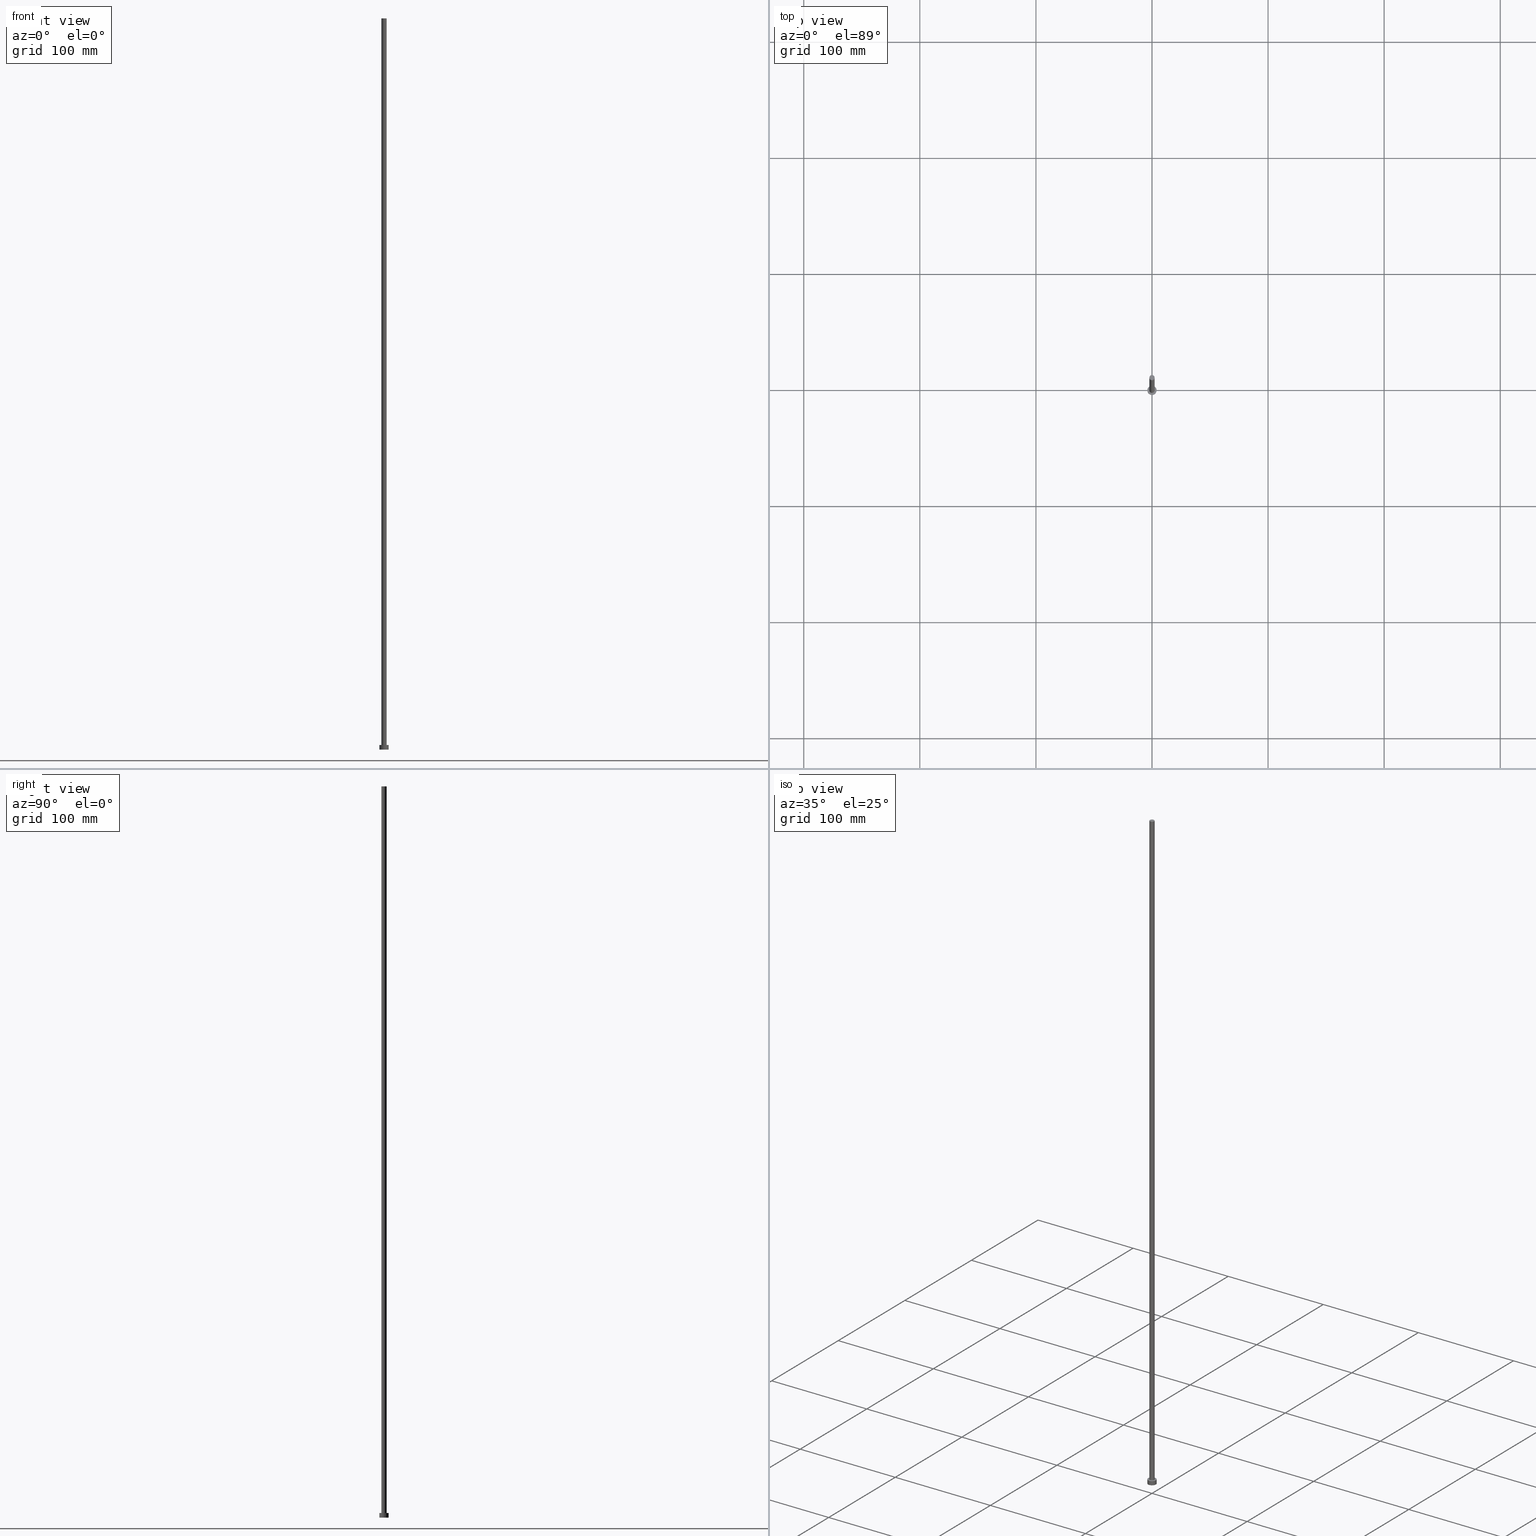
[diagram: canonical four-view strip — front | top / right | iso, engineering-drawing reading convention]
A machine part, canonical four-view strip (front | top / right | iso — engineering-drawing reading convention). The complete STEP part file that produces these views, byte-faithful:
ISO-10303-21;
HEADER;
FILE_DESCRIPTION (( 'STEP AP203' ),
    '1' );
FILE_NAME ('1d7a.STEP',
    '2023-02-13T16:19:26',
    ( '' ),
    ( '' ),
    'SwSTEP 2.0',
    'SolidWorks 2019',
    '' );
FILE_SCHEMA (( 'CONFIG_CONTROL_DESIGN' ));
ENDSEC;

DATA;
#1 = CARTESIAN_POINT ( 'NONE',  ( 0.000000000000000000, 0.000000000000000000, 630.0000000000000000 ) ) ;
#2 = COORDINATED_UNIVERSAL_TIME_OFFSET ( 1, 0, .AHEAD. ) ;
#3 = AXIS2_PLACEMENT_3D ( 'NONE', #149, #15, #254 ) ;
#4 = ADVANCED_FACE ( 'NONE', ( #166 ), #222, .F. ) ;
#5 = ORIENTED_EDGE ( 'NONE', *, *, #54, .F. ) ;
#6 = CC_DESIGN_PERSON_AND_ORGANIZATION_ASSIGNMENT ( #102, #53, ( #169 ) ) ;
#7 = CLOSED_SHELL ( 'NONE', ( #231, #10, #173, #133, #4, #217, #243 ) ) ;
#8 = SECURITY_CLASSIFICATION ( '', '', #167 ) ;
#9 = EDGE_CURVE ( 'NONE', #165, #212, #223, .T. ) ;
#10 = ADVANCED_FACE ( 'NONE', ( #49 ), #153, .T. ) ;
#11 = APPROVAL ( #25, 'NEUR�EN�' ) ;
#12 = CARTESIAN_POINT ( 'NONE',  ( 0.000000000000000000, 0.000000000000000000, 0.000000000000000000 ) ) ;
#13 = COORDINATED_UNIVERSAL_TIME_OFFSET ( 1, 0, .AHEAD. ) ;
#14 = APPROVAL_PERSON_ORGANIZATION ( #72, #36, #168 ) ;
#15 = DIRECTION ( 'NONE',  ( 0.000000000000000000, 0.000000000000000000, 1.000000000000000000 ) ) ;
#16 = CYLINDRICAL_SURFACE ( 'NONE', #127, 2.250000000000000000 ) ;
#17 = FACE_BOUND ( 'NONE', #84, .T. ) ;
#18 = CC_DESIGN_DATE_AND_TIME_ASSIGNMENT ( #23, #239, ( #152 ) ) ;
#19 = EDGE_LOOP ( 'NONE', ( #58, #96 ) ) ;
#20 = DIRECTION ( 'NONE',  ( 0.000000000000000000, 0.000000000000000000, 1.000000000000000000 ) ) ;
#21 = LOCAL_TIME ( 17, 19, 26.00000000000000000, #226 ) ;
#22 = PRODUCT_DEFINITION_SHAPE ( 'NONE', 'NONE',  #152 ) ;
#23 = DATE_AND_TIME ( #44, #27 ) ;
#24 = EDGE_LOOP ( 'NONE', ( #76, #195, #140, #131 ) ) ;
#25 = APPROVAL_STATUS ( 'not_yet_approved' ) ;
#26 = ADVANCED_BREP_SHAPE_REPRESENTATION ( '1d7a', ( #103, #150 ), #71 ) ;
#27 = LOCAL_TIME ( 17, 19, 26.00000000000000000, #157 ) ;
#28 = FACE_OUTER_BOUND ( 'NONE', #199, .T. ) ;
#29 = APPLICATION_PROTOCOL_DEFINITION ( 'international standard', 'config_control_design', 1994, #30 ) ;
#30 = APPLICATION_CONTEXT ( 'configuration controlled 3d designs of mechanical parts and assemblies' ) ;
#31 = CARTESIAN_POINT ( 'NONE',  ( 0.000000000000000000, 0.000000000000000000, 630.0000000000000000 ) ) ;
#32 = SHAPE_DEFINITION_REPRESENTATION ( #22, #26 ) ;
#33 = LINE ( 'NONE', #125, #253 ) ;
#34 = VECTOR ( 'NONE', #90, 1000.000000000000000 ) ;
#35 = CC_DESIGN_APPROVAL ( #117, ( #152 ) ) ;
#36 = APPROVAL ( #207, 'NEUR�EN�' ) ;
#37 = DIRECTION ( 'NONE',  ( 0.000000000000000000, 0.000000000000000000, 1.000000000000000000 ) ) ;
#38 = CARTESIAN_POINT ( 'NONE',  ( 2.250000000000000000, 2.755455298081544285E-16, 4.000000000000000000 ) ) ;
#39 = DIRECTION ( 'NONE',  ( -1.000000000000000000, 0.000000000000000000, 0.000000000000000000 ) ) ;
#40 = PERSON_AND_ORGANIZATION ( #203, #94 ) ;
#41 = APPROVAL_PERSON_ORGANIZATION ( #115, #11, #97 ) ;
#42 = CC_DESIGN_PERSON_AND_ORGANIZATION_ASSIGNMENT ( #40, #95, ( #152 ) ) ;
#43 = ORIENTED_EDGE ( 'NONE', *, *, #9, .T. ) ;
#44 = CALENDAR_DATE ( 2023, 13, 2 ) ;
#45 = FACE_OUTER_BOUND ( 'NONE', #201, .T. ) ;
#46 = ORIENTED_EDGE ( 'NONE', *, *, #171, .F. ) ;
#47 = CC_DESIGN_SECURITY_CLASSIFICATION ( #8, ( #169 ) ) ;
#48 = APPROVAL_DATE_TIME ( #87, #11 ) ;
#49 = FACE_OUTER_BOUND ( 'NONE', #220, .T. ) ;
#50 = DIRECTION ( 'NONE',  ( 0.000000000000000000, 0.000000000000000000, 1.000000000000000000 ) ) ;
#51 = PERSON_AND_ORGANIZATION_ROLE ( 'creator' ) ;
#52 = CARTESIAN_POINT ( 'NONE',  ( 0.000000000000000000, 0.000000000000000000, 4.000000000000000000 ) ) ;
#53 = PERSON_AND_ORGANIZATION_ROLE ( 'design_supplier' ) ;
#54 = EDGE_CURVE ( 'NONE', #238, #158, #147, .T. ) ;
#55 = CARTESIAN_POINT ( 'NONE',  ( 4.000000000000000000, 4.898587196589412829E-16, 4.000000000000000000 ) ) ;
#56 = CARTESIAN_POINT ( 'NONE',  ( 0.000000000000000000, 0.000000000000000000, 4.000000000000000000 ) ) ;
#57 = AXIS2_PLACEMENT_3D ( 'NONE', #1, #132, #136 ) ;
#58 = ORIENTED_EDGE ( 'NONE', *, *, #145, .T. ) ;
#59 = CARTESIAN_POINT ( 'NONE',  ( 0.000000000000000000, 0.000000000000000000, 4.000000000000000000 ) ) ;
#60 = EDGE_CURVE ( 'NONE', #255, #129, #100, .T. ) ;
#61 = EDGE_LOOP ( 'NONE', ( #113, #161, #192, #175 ) ) ;
#62 = DATE_AND_TIME ( #218, #101 ) ;
#63 = ORIENTED_EDGE ( 'NONE', *, *, #194, .F. ) ;
#64 = APPROVAL_ROLE ( '' ) ;
#65 = VECTOR ( 'NONE', #107, 1000.000000000000000 ) ;
#66 = PLANE ( 'NONE',  #57 ) ;
#67 = EDGE_LOOP ( 'NONE', ( #5, #219 ) ) ;
#68 = DIRECTION ( 'NONE',  ( 0.000000000000000000, 0.000000000000000000, 1.000000000000000000 ) ) ;
#69 = DIRECTION ( 'NONE',  ( 0.000000000000000000, 0.000000000000000000, 1.000000000000000000 ) ) ;
#70 = PERSON_AND_ORGANIZATION ( #203, #94 ) ;
#71 =( GEOMETRIC_REPRESENTATION_CONTEXT ( 3 ) GLOBAL_UNCERTAINTY_ASSIGNED_CONTEXT ( ( #227 ) ) GLOBAL_UNIT_ASSIGNED_CONTEXT ( ( #139, #85, #202 ) ) REPRESENTATION_CONTEXT ( 'NONE', 'WORKASPACE' ) );
#72 = PERSON_AND_ORGANIZATION ( #203, #94 ) ;
#73 = DIRECTION ( 'NONE',  ( 0.000000000000000000, 0.000000000000000000, 1.000000000000000000 ) ) ;
#74 = DIRECTION ( 'NONE',  ( 0.000000000000000000, 0.000000000000000000, 1.000000000000000000 ) ) ;
#75 = FACE_OUTER_BOUND ( 'NONE', #24, .T. ) ;
#76 = ORIENTED_EDGE ( 'NONE', *, *, #209, .F. ) ;
#77 = EDGE_CURVE ( 'NONE', #255, #165, #33, .T. ) ;
#78 = DIRECTION ( 'NONE',  ( -1.000000000000000000, 0.000000000000000000, 0.000000000000000000 ) ) ;
#79 = ORIENTED_EDGE ( 'NONE', *, *, #60, .T. ) ;
#80 = DIRECTION ( 'NONE',  ( -1.000000000000000000, 0.000000000000000000, 0.000000000000000000 ) ) ;
#81 = COORDINATED_UNIVERSAL_TIME_OFFSET ( 1, 0, .AHEAD. ) ;
#82 = ORIENTED_EDGE ( 'NONE', *, *, #184, .F. ) ;
#83 = CALENDAR_DATE ( 2023, 13, 2 ) ;
#84 = EDGE_LOOP ( 'NONE', ( #46, #216 ) ) ;
#85 =( NAMED_UNIT ( * ) PLANE_ANGLE_UNIT ( ) SI_UNIT ( $, .RADIAN. ) );
#86 = ORIENTED_EDGE ( 'NONE', *, *, #114, .T. ) ;
#87 = DATE_AND_TIME ( #83, #197 ) ;
#88 = CC_DESIGN_APPROVAL ( #36, ( #8 ) ) ;
#89 = PERSON_AND_ORGANIZATION_ROLE ( 'classification_officer' ) ;
#90 = DIRECTION ( 'NONE',  ( -0.000000000000000000, -0.000000000000000000, -1.000000000000000000 ) ) ;
#91 = FACE_OUTER_BOUND ( 'NONE', #19, .T. ) ;
#92 = VERTEX_POINT ( 'NONE', #206 ) ;
#93 = CARTESIAN_POINT ( 'NONE',  ( -2.250000000000000000, 0.000000000000000000, 630.0000000000000000 ) ) ;
#94 = ORGANIZATION ( 'NEUR�EN�', 'NEUR�EN�', '' ) ;
#95 = PERSON_AND_ORGANIZATION_ROLE ( 'creator' ) ;
#96 = ORIENTED_EDGE ( 'NONE', *, *, #194, .T. ) ;
#97 = APPROVAL_ROLE ( '' ) ;
#98 = VERTEX_POINT ( 'NONE', #105 ) ;
#99 = MECHANICAL_CONTEXT ( 'NONE', #190, 'mechanical' ) ;
#100 = CIRCLE ( 'NONE', #135, 2.250000000000000000 ) ;
#101 = LOCAL_TIME ( 17, 19, 26.00000000000000000, #81 ) ;
#102 = PERSON_AND_ORGANIZATION ( #203, #94 ) ;
#103 = MANIFOLD_SOLID_BREP ( 'P�idat vysunut�m3', #7 ) ;
#104 = DIRECTION ( 'NONE',  ( -0.000000000000000000, -0.000000000000000000, -1.000000000000000000 ) ) ;
#105 = CARTESIAN_POINT ( 'NONE',  ( -4.000000000000000000, 0.000000000000000000, 4.000000000000000000 ) ) ;
#106 = AXIS2_PLACEMENT_3D ( 'NONE', #52, #213, #39 ) ;
#107 = DIRECTION ( 'NONE',  ( -0.000000000000000000, -0.000000000000000000, -1.000000000000000000 ) ) ;
#108 = DIRECTION ( 'NONE',  ( -0.000000000000000000, -0.000000000000000000, -1.000000000000000000 ) ) ;
#109 = CC_DESIGN_DATE_AND_TIME_ASSIGNMENT ( #185, #123, ( #8 ) ) ;
#110 = DIRECTION ( 'NONE',  ( 1.000000000000000000, 0.000000000000000000, 0.000000000000000000 ) ) ;
#111 = AXIS2_PLACEMENT_3D ( 'NONE', #182, #112, #80 ) ;
#112 = DIRECTION ( 'NONE',  ( -0.000000000000000000, -0.000000000000000000, -1.000000000000000000 ) ) ;
#113 = ORIENTED_EDGE ( 'NONE', *, *, #77, .F. ) ;
#114 = EDGE_CURVE ( 'NONE', #129, #255, #189, .T. ) ;
#115 = PERSON_AND_ORGANIZATION ( #203, #94 ) ;
#116 = ORIENTED_EDGE ( 'NONE', *, *, #178, .T. ) ;
#117 = APPROVAL ( #163, 'NEUR�EN�' ) ;
#118 = AXIS2_PLACEMENT_3D ( 'NONE', #183, #69, #146 ) ;
#119 = CIRCLE ( 'NONE', #210, 4.000000000000000000 ) ;
#120 = PERSON_AND_ORGANIZATION_ROLE ( 'design_owner' ) ;
#121 = CALENDAR_DATE ( 2023, 13, 2 ) ;
#122 = DIRECTION ( 'NONE',  ( 1.000000000000000000, 0.000000000000000000, 0.000000000000000000 ) ) ;
#123 = DATE_TIME_ROLE ( 'classification_date' ) ;
#124 = DIRECTION ( 'NONE',  ( 0.000000000000000000, 0.000000000000000000, 1.000000000000000000 ) ) ;
#125 = CARTESIAN_POINT ( 'NONE',  ( 2.250000000000000000, 2.755455298081544285E-16, 630.0000000000000000 ) ) ;
#126 = AXIS2_PLACEMENT_3D ( 'NONE', #56, #124, #230 ) ;
#127 = AXIS2_PLACEMENT_3D ( 'NONE', #211, #108, #193 ) ;
#128 = CARTESIAN_POINT ( 'NONE',  ( -4.000000000000000000, 0.000000000000000000, 4.000000000000000000 ) ) ;
#129 = VERTEX_POINT ( 'NONE', #93 ) ;
#130 = CYLINDRICAL_SURFACE ( 'NONE', #106, 4.000000000000000000 ) ;
#131 = ORIENTED_EDGE ( 'NONE', *, *, #54, .T. ) ;
#132 = DIRECTION ( 'NONE',  ( 0.000000000000000000, 0.000000000000000000, 1.000000000000000000 ) ) ;
#133 = ADVANCED_FACE ( 'NONE', ( #17, #91 ), #233, .T. ) ;
#134 = ORIENTED_EDGE ( 'NONE', *, *, #162, .F. ) ;
#135 = AXIS2_PLACEMENT_3D ( 'NONE', #31, #20, #188 ) ;
#136 = DIRECTION ( 'NONE',  ( 1.000000000000000000, 0.000000000000000000, -0.000000000000000000 ) ) ;
#137 = ORIENTED_EDGE ( 'NONE', *, *, #77, .T. ) ;
#138 = CARTESIAN_POINT ( 'NONE',  ( 2.250000000000000000, 2.755455298081544285E-16, 630.0000000000000000 ) ) ;
#139 =( LENGTH_UNIT ( ) NAMED_UNIT ( * ) SI_UNIT ( .MILLI., .METRE. ) );
#140 = ORIENTED_EDGE ( 'NONE', *, *, #184, .T. ) ;
#141 = AXIS2_PLACEMENT_3D ( 'NONE', #251, #73, #179 ) ;
#142 = CYLINDRICAL_SURFACE ( 'NONE', #111, 2.250000000000000000 ) ;
#143 = CIRCLE ( 'NONE', #141, 4.000000000000000000 ) ;
#144 = DIRECTION ( 'NONE',  ( 1.000000000000000000, 0.000000000000000000, -0.000000000000000000 ) ) ;
#145 = EDGE_CURVE ( 'NONE', #98, #92, #143, .T. ) ;
#146 = DIRECTION ( 'NONE',  ( 1.000000000000000000, 0.000000000000000000, 0.000000000000000000 ) ) ;
#147 = CIRCLE ( 'NONE', #159, 4.000000000000000000 ) ;
#148 = CARTESIAN_POINT ( 'NONE',  ( -2.250000000000000000, 0.000000000000000000, 4.000000000000000000 ) ) ;
#149 = CARTESIAN_POINT ( 'NONE',  ( 0.000000000000000000, 0.000000000000000000, 630.0000000000000000 ) ) ;
#150 = AXIS2_PLACEMENT_3D ( 'NONE', #164, #204, #198 ) ;
#151 = CARTESIAN_POINT ( 'NONE',  ( 0.000000000000000000, 0.000000000000000000, 4.000000000000000000 ) ) ;
#152 = PRODUCT_DEFINITION ( 'NEZN�M�', '', #169, #225 ) ;
#153 = CYLINDRICAL_SURFACE ( 'NONE', #248, 4.000000000000000000 ) ;
#154 = PRODUCT_RELATED_PRODUCT_CATEGORY ( 'detail', '', ( #208 ) ) ;
#155 = LOCAL_TIME ( 17, 19, 26.00000000000000000, #13 ) ;
#156 = CARTESIAN_POINT ( 'NONE',  ( -2.250000000000000000, 0.000000000000000000, 630.0000000000000000 ) ) ;
#157 = COORDINATED_UNIVERSAL_TIME_OFFSET ( 1, 0, .AHEAD. ) ;
#158 = VERTEX_POINT ( 'NONE', #174 ) ;
#159 = AXIS2_PLACEMENT_3D ( 'NONE', #12, #50, #122 ) ;
#160 = PERSON_AND_ORGANIZATION ( #203, #94 ) ;
#161 = ORIENTED_EDGE ( 'NONE', *, *, #114, .F. ) ;
#162 = EDGE_CURVE ( 'NONE', #129, #212, #176, .T. ) ;
#163 = APPROVAL_STATUS ( 'not_yet_approved' ) ;
#164 = CARTESIAN_POINT ( 'NONE',  ( 0.000000000000000000, 0.000000000000000000, 0.000000000000000000 ) ) ;
#165 = VERTEX_POINT ( 'NONE', #38 ) ;
#166 = FACE_OUTER_BOUND ( 'NONE', #67, .T. ) ;
#167 = SECURITY_CLASSIFICATION_LEVEL ( 'unclassified' ) ;
#168 = APPROVAL_ROLE ( '' ) ;
#169 = PRODUCT_DEFINITION_FORMATION_WITH_SPECIFIED_SOURCE ( 'LIBOVOLN�', '', #208, .NOT_KNOWN. ) ;
#170 = DIRECTION ( 'NONE',  ( -0.000000000000000000, -0.000000000000000000, -1.000000000000000000 ) ) ;
#171 = EDGE_CURVE ( 'NONE', #212, #165, #181, .T. ) ;
#172 = DIRECTION ( 'NONE',  ( 0.000000000000000000, 0.000000000000000000, 1.000000000000000000 ) ) ;
#173 = ADVANCED_FACE ( 'NONE', ( #75 ), #130, .T. ) ;
#174 = CARTESIAN_POINT ( 'NONE',  ( 4.000000000000000000, 4.898587196589412829E-16, 0.000000000000000000 ) ) ;
#175 = ORIENTED_EDGE ( 'NONE', *, *, #171, .T. ) ;
#176 = LINE ( 'NONE', #156, #34 ) ;
#177 = APPROVAL_PERSON_ORGANIZATION ( #160, #117, #64 ) ;
#178 = EDGE_CURVE ( 'NONE', #158, #238, #246, .T. ) ;
#179 = DIRECTION ( 'NONE',  ( 1.000000000000000000, 0.000000000000000000, 0.000000000000000000 ) ) ;
#180 = ORIENTED_EDGE ( 'NONE', *, *, #60, .F. ) ;
#181 = CIRCLE ( 'NONE', #224, 2.250000000000000000 ) ;
#182 = CARTESIAN_POINT ( 'NONE',  ( 0.000000000000000000, 0.000000000000000000, 630.0000000000000000 ) ) ;
#183 = CARTESIAN_POINT ( 'NONE',  ( 0.000000000000000000, 0.000000000000000000, 4.000000000000000000 ) ) ;
#184 = EDGE_CURVE ( 'NONE', #98, #238, #228, .T. ) ;
#185 = DATE_AND_TIME ( #187, #21 ) ;
#186 = AXIS2_PLACEMENT_3D ( 'NONE', #250, #74, #110 ) ;
#187 = CALENDAR_DATE ( 2023, 13, 2 ) ;
#188 = DIRECTION ( 'NONE',  ( 1.000000000000000000, 0.000000000000000000, 0.000000000000000000 ) ) ;
#189 = CIRCLE ( 'NONE', #3, 2.250000000000000000 ) ;
#190 = APPLICATION_CONTEXT ( 'configuration controlled 3d designs of mechanical parts and assemblies' ) ;
#191 = FACE_OUTER_BOUND ( 'NONE', #61, .T. ) ;
#192 = ORIENTED_EDGE ( 'NONE', *, *, #162, .T. ) ;
#193 = DIRECTION ( 'NONE',  ( -1.000000000000000000, 0.000000000000000000, 0.000000000000000000 ) ) ;
#194 = EDGE_CURVE ( 'NONE', #92, #98, #119, .T. ) ;
#195 = ORIENTED_EDGE ( 'NONE', *, *, #145, .F. ) ;
#196 = LINE ( 'NONE', #55, #65 ) ;
#197 = LOCAL_TIME ( 17, 19, 26.00000000000000000, #2 ) ;
#198 = DIRECTION ( 'NONE',  ( 1.000000000000000000, 0.000000000000000000, 0.000000000000000000 ) ) ;
#199 = EDGE_LOOP ( 'NONE', ( #180, #137, #43, #134 ) ) ;
#200 = CARTESIAN_POINT ( 'NONE',  ( -4.000000000000000000, 0.000000000000000000, 0.000000000000000000 ) ) ;
#201 = EDGE_LOOP ( 'NONE', ( #86, #79 ) ) ;
#202 =( NAMED_UNIT ( * ) SI_UNIT ( $, .STERADIAN. ) SOLID_ANGLE_UNIT ( ) );
#203 = PERSON ( 'NEUR�EN�', 'NEUR�EN�', 'NEUR�EN�', ('NEUR�EN�'), ('NEUR�EN�'), ('NEUR�EN�') ) ;
#204 = DIRECTION ( 'NONE',  ( 0.000000000000000000, 0.000000000000000000, 1.000000000000000000 ) ) ;
#205 = APPROVAL_DATE_TIME ( #245, #36 ) ;
#206 = CARTESIAN_POINT ( 'NONE',  ( 4.000000000000000000, 4.898587196589412829E-16, 4.000000000000000000 ) ) ;
#207 = APPROVAL_STATUS ( 'not_yet_approved' ) ;
#208 = PRODUCT ( '1d7a', '1d7a', '', ( #99 ) ) ;
#209 = EDGE_CURVE ( 'NONE', #92, #158, #196, .T. ) ;
#210 = AXIS2_PLACEMENT_3D ( 'NONE', #151, #37, #232 ) ;
#211 = CARTESIAN_POINT ( 'NONE',  ( 0.000000000000000000, 0.000000000000000000, 630.0000000000000000 ) ) ;
#212 = VERTEX_POINT ( 'NONE', #148 ) ;
#213 = DIRECTION ( 'NONE',  ( -0.000000000000000000, -0.000000000000000000, -1.000000000000000000 ) ) ;
#214 = APPROVAL_DATE_TIME ( #62, #117 ) ;
#215 = AXIS2_PLACEMENT_3D ( 'NONE', #244, #68, #144 ) ;
#216 = ORIENTED_EDGE ( 'NONE', *, *, #9, .F. ) ;
#217 = ADVANCED_FACE ( 'NONE', ( #191 ), #16, .T. ) ;
#218 = CALENDAR_DATE ( 2023, 13, 2 ) ;
#219 = ORIENTED_EDGE ( 'NONE', *, *, #178, .F. ) ;
#220 = EDGE_LOOP ( 'NONE', ( #63, #235, #116, #82 ) ) ;
#221 = CC_DESIGN_PERSON_AND_ORGANIZATION_ASSIGNMENT ( #229, #89, ( #8 ) ) ;
#222 = PLANE ( 'NONE',  #215 ) ;
#223 = CIRCLE ( 'NONE', #118, 2.250000000000000000 ) ;
#224 = AXIS2_PLACEMENT_3D ( 'NONE', #59, #172, #236 ) ;
#225 = DESIGN_CONTEXT ( 'detailed design', #30, 'design' ) ;
#226 = COORDINATED_UNIVERSAL_TIME_OFFSET ( 1, 0, .AHEAD. ) ;
#227 = UNCERTAINTY_MEASURE_WITH_UNIT (LENGTH_MEASURE( 1.000000000000000082E-05 ), #139, 'distance_accuracy_value', 'NONE');
#228 = LINE ( 'NONE', #128, #249 ) ;
#229 = PERSON_AND_ORGANIZATION ( #203, #94 ) ;
#230 = DIRECTION ( 'NONE',  ( 1.000000000000000000, 0.000000000000000000, -0.000000000000000000 ) ) ;
#231 = ADVANCED_FACE ( 'NONE', ( #28 ), #142, .T. ) ;
#232 = DIRECTION ( 'NONE',  ( 1.000000000000000000, 0.000000000000000000, 0.000000000000000000 ) ) ;
#233 = PLANE ( 'NONE',  #126 ) ;
#234 = CC_DESIGN_APPROVAL ( #11, ( #169 ) ) ;
#235 = ORIENTED_EDGE ( 'NONE', *, *, #209, .T. ) ;
#236 = DIRECTION ( 'NONE',  ( 1.000000000000000000, 0.000000000000000000, 0.000000000000000000 ) ) ;
#237 = APPLICATION_PROTOCOL_DEFINITION ( 'international standard', 'config_control_design', 1994, #190 ) ;
#238 = VERTEX_POINT ( 'NONE', #200 ) ;
#239 = DATE_TIME_ROLE ( 'creation_date' ) ;
#240 = CC_DESIGN_PERSON_AND_ORGANIZATION_ASSIGNMENT ( #242, #120, ( #208 ) ) ;
#241 = CC_DESIGN_PERSON_AND_ORGANIZATION_ASSIGNMENT ( #70, #51, ( #169 ) ) ;
#242 = PERSON_AND_ORGANIZATION ( #203, #94 ) ;
#243 = ADVANCED_FACE ( 'NONE', ( #45 ), #66, .T. ) ;
#244 = CARTESIAN_POINT ( 'NONE',  ( 0.000000000000000000, 0.000000000000000000, 0.000000000000000000 ) ) ;
#245 = DATE_AND_TIME ( #121, #155 ) ;
#246 = CIRCLE ( 'NONE', #186, 4.000000000000000000 ) ;
#247 = DIRECTION ( 'NONE',  ( -0.000000000000000000, -0.000000000000000000, -1.000000000000000000 ) ) ;
#248 = AXIS2_PLACEMENT_3D ( 'NONE', #252, #170, #78 ) ;
#249 = VECTOR ( 'NONE', #104, 1000.000000000000000 ) ;
#250 = CARTESIAN_POINT ( 'NONE',  ( 0.000000000000000000, 0.000000000000000000, 0.000000000000000000 ) ) ;
#251 = CARTESIAN_POINT ( 'NONE',  ( 0.000000000000000000, 0.000000000000000000, 4.000000000000000000 ) ) ;
#252 = CARTESIAN_POINT ( 'NONE',  ( 0.000000000000000000, 0.000000000000000000, 4.000000000000000000 ) ) ;
#253 = VECTOR ( 'NONE', #247, 1000.000000000000000 ) ;
#254 = DIRECTION ( 'NONE',  ( 1.000000000000000000, 0.000000000000000000, 0.000000000000000000 ) ) ;
#255 = VERTEX_POINT ( 'NONE', #138 ) ;
ENDSEC;
END-ISO-10303-21;
